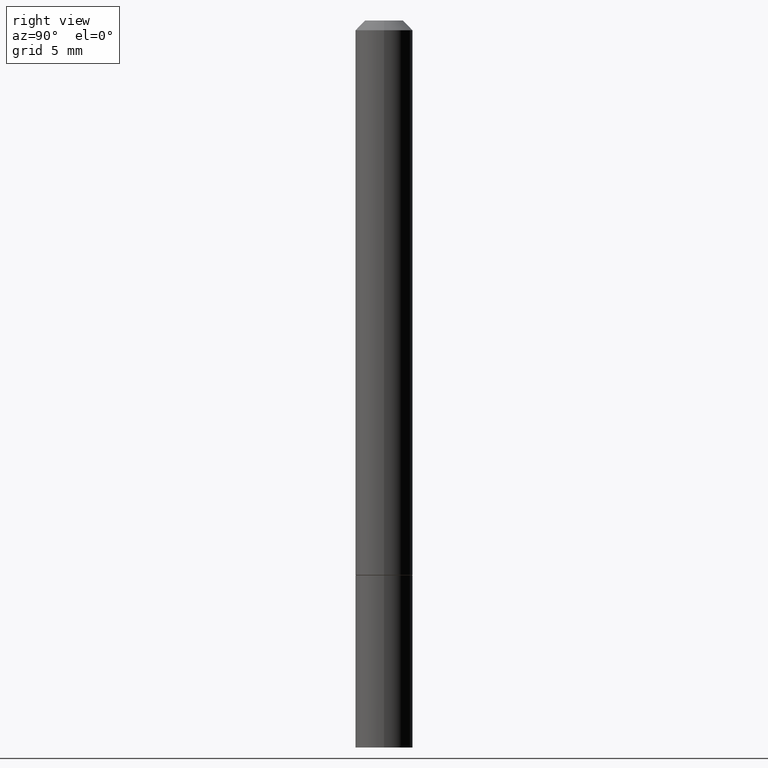
[diagram: clean part render]
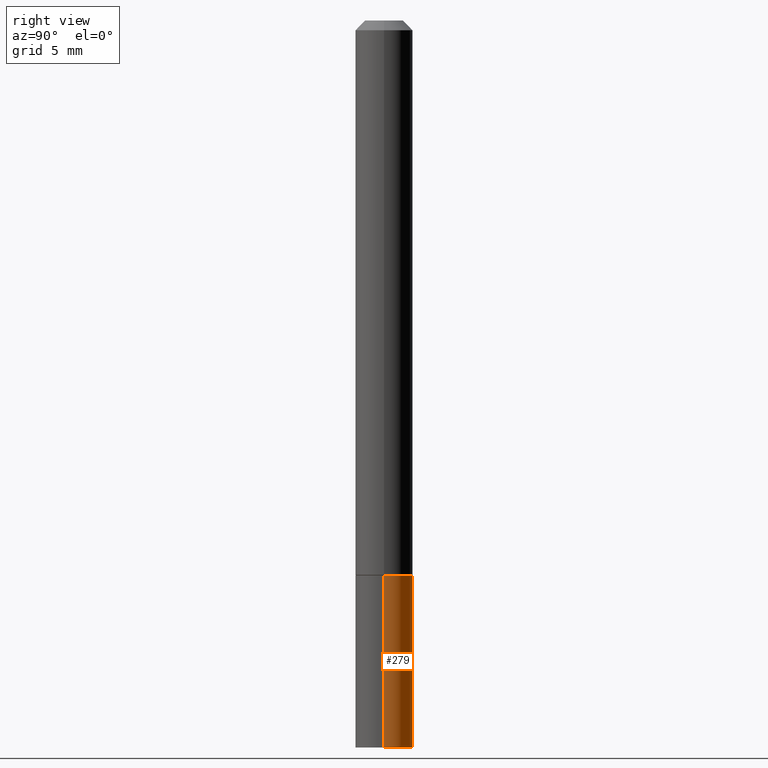
[diagram: same view with one face highlighted and labeled with its STEP entity id]
A machine part, right view. The second image highlights one B-rep face of the part: STEP entity #279.
In plain terms, the highlighted cylindrical surface (edge-blend (fillet) strip) has radius 1.4999 mm, axis along (-0, 0, 1).
Its self-contained STEP definition (entity closure, byte-faithful):
#8 = CARTESIAN_POINT ( 'NONE',  ( 0.05904999999999999832, -4.398917338808476664E-15, -1.141799999999999926 ) ) ;
#14 = AXIS2_PLACEMENT_3D ( 'NONE', #264, #65, #69 ) ;
#23 = EDGE_CURVE ( 'NONE', #240, #359, #225, .T. ) ;
#30 = DIRECTION ( 'NONE',  ( -2.445468806185136877E-29, 3.491481338843145188E-15, 1.000000000000000000 ) ) ;
#32 = CARTESIAN_POINT ( 'NONE',  ( -0.05904999999999999832, -4.185513826400826604E-15, -1.141799999999999926 ) ) ;
#40 = CYLINDRICAL_SURFACE ( 'NONE', #200, 0.05905000000000000526 ) ;
#65 = DIRECTION ( 'NONE',  ( -2.445468806185136597E-29, 3.491481338843145583E-15, 1.000000000000000000 ) ) ;
#69 = DIRECTION ( 'NONE',  ( 1.000000000000000000, -6.982962677686270655E-15, 0.000000000000000000 ) ) ;
#83 = AXIS2_PLACEMENT_3D ( 'NONE', #265, #315, #147 ) ;
#85 = CARTESIAN_POINT ( 'NONE',  ( 0.05905000000000000526, -4.123439461173741313E-16, 2.879382386107500571E-30 ) ) ;
#91 = DIRECTION ( 'NONE',  ( -2.445468806185136597E-29, 3.491481338843145583E-15, 1.000000000000000000 ) ) ;
#99 = VERTEX_POINT ( 'NONE', #172 ) ;
#116 = CARTESIAN_POINT ( 'NONE',  ( 0.05905000000000001914, -5.635949177160603791E-15, -1.496099999999999985 ) ) ;
#122 = CIRCLE ( 'NONE', #83, 0.05904999999999999832 ) ;
#136 = VERTEX_POINT ( 'NONE', #32 ) ;
#139 = EDGE_LOOP ( 'NONE', ( #266, #213, #273, #150 ) ) ;
#147 = DIRECTION ( 'NONE',  ( 1.000000000000000000, -6.982962677686265133E-15, 0.000000000000000000 ) ) ;
#150 = ORIENTED_EDGE ( 'NONE', *, *, #23, .F. ) ;
#169 = CIRCLE ( 'NONE', #14, 0.05905000000000001914 ) ;
#172 = CARTESIAN_POINT ( 'NONE',  ( -0.05905000000000002608, -4.185513826400826604E-15, -1.496099999999999985 ) ) ;
#200 = AXIS2_PLACEMENT_3D ( 'NONE', #346, #91, #205 ) ;
#205 = DIRECTION ( 'NONE',  ( 1.000000000000000000, -6.982962677686267499E-15, 4.876176775795936353E-29 ) ) ;
#213 = ORIENTED_EDGE ( 'NONE', *, *, #246, .T. ) ;
#225 = LINE ( 'NONE', #85, #305 ) ;
#237 = CARTESIAN_POINT ( 'NONE',  ( -0.05905000000000000526, 4.195754854663391971E-16, -2.904631170795522242E-30 ) ) ;
#240 = VERTEX_POINT ( 'NONE', #116 ) ;
#246 = EDGE_CURVE ( 'NONE', #99, #136, #349, .T. ) ;
#247 = EDGE_CURVE ( 'NONE', #359, #136, #122, .T. ) ;
#254 = EDGE_CURVE ( 'NONE', #240, #99, #169, .T. ) ;
#264 = CARTESIAN_POINT ( 'NONE',  ( 3.658665880933582389E-29, -5.223605231043229660E-15, -1.496099999999999985 ) ) ;
#265 = CARTESIAN_POINT ( 'NONE',  ( 2.792236282902188505E-29, -3.986573392691103322E-15, -1.141799999999999926 ) ) ;
#266 = ORIENTED_EDGE ( 'NONE', *, *, #254, .T. ) ;
#273 = ORIENTED_EDGE ( 'NONE', *, *, #247, .F. ) ;
#279 = ADVANCED_FACE ( 'NONE', ( #292 ), #40, .T. ) ;
#281 = VECTOR ( 'NONE', #317, 39.37007874015748143 ) ;
#292 = FACE_OUTER_BOUND ( 'NONE', #139, .T. ) ;
#305 = VECTOR ( 'NONE', #30, 39.37007874015748143 ) ;
#315 = DIRECTION ( 'NONE',  ( -2.445468806185136597E-29, 3.491481338843145583E-15, 1.000000000000000000 ) ) ;
#317 = DIRECTION ( 'NONE',  ( -2.445468806185136877E-29, 3.491481338843145188E-15, 1.000000000000000000 ) ) ;
#346 = CARTESIAN_POINT ( 'NONE',  ( 0.000000000000000000, 0.000000000000000000, 0.000000000000000000 ) ) ;
#349 = LINE ( 'NONE', #237, #281 ) ;
#359 = VERTEX_POINT ( 'NONE', #8 ) ;